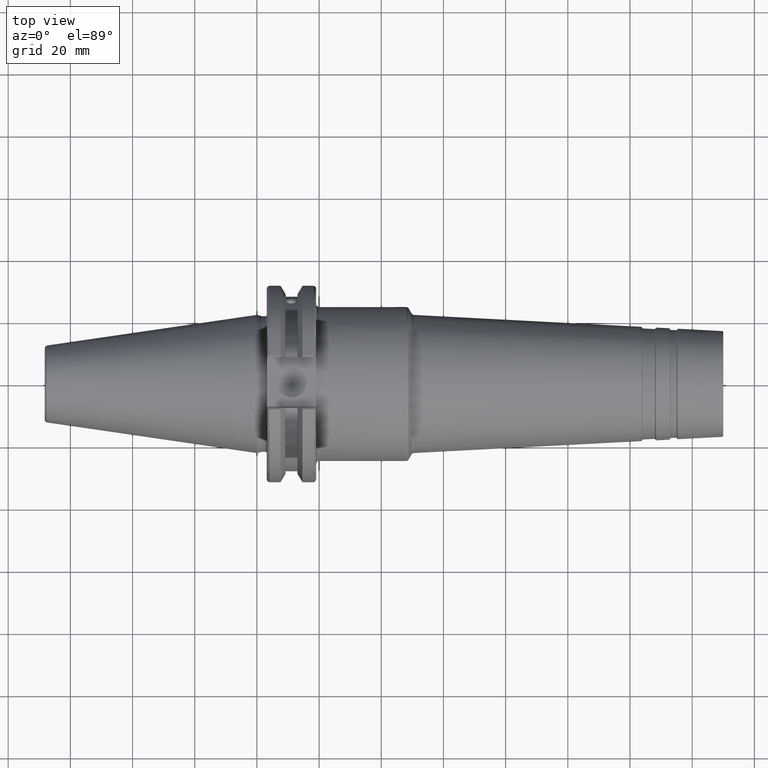
[diagram: clean part render]
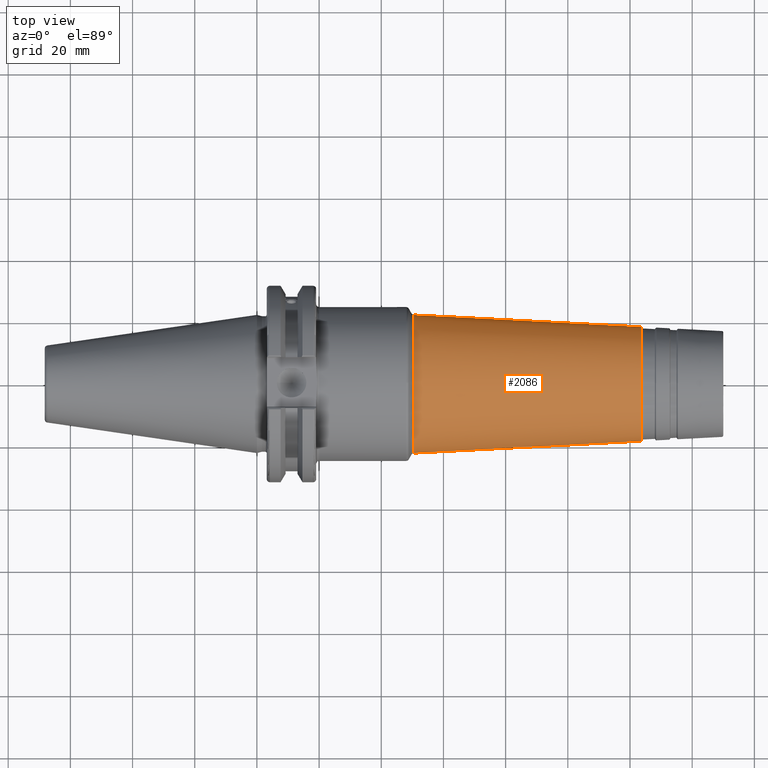
[diagram: same view with one face highlighted and labeled with its STEP entity id]
A machine part, top view. The second image highlights one B-rep face of the part: STEP entity #2086.
In plain terms, the highlighted conical surface has half-angle 3 deg.
Its self-contained STEP definition (entity closure, byte-faithful):
#112=CONICAL_SURFACE('',#2289,20.3081634099065,0.0523598775598296);
#197=FACE_OUTER_BOUND('',#306,.T.);
#306=EDGE_LOOP('',(#1525,#1526,#1527,#1528,#1529,#1530,#1531,#1532));
#415=LINE('',#3462,#514);
#514=VECTOR('',#2704,20.3081634099065);
#673=CIRCLE('',#2286,18.387635362879);
#674=CIRCLE('',#2287,18.387635362879);
#675=CIRCLE('',#2288,18.387635362879);
#676=CIRCLE('',#2290,22.212361822566);
#677=CIRCLE('',#2291,22.212361822566);
#678=CIRCLE('',#2292,22.212361822566);
#843=VERTEX_POINT('',#3453);
#844=VERTEX_POINT('',#3455);
#845=VERTEX_POINT('',#3457);
#846=VERTEX_POINT('',#3461);
#847=VERTEX_POINT('',#3463);
#848=VERTEX_POINT('',#3465);
#1106=EDGE_CURVE('',#843,#844,#673,.T.);
#1107=EDGE_CURVE('',#844,#845,#674,.T.);
#1108=EDGE_CURVE('',#845,#843,#675,.T.);
#1109=EDGE_CURVE('',#844,#846,#415,.T.);
#1110=EDGE_CURVE('',#847,#846,#676,.T.);
#1111=EDGE_CURVE('',#848,#847,#677,.T.);
#1112=EDGE_CURVE('',#846,#848,#678,.T.);
#1525=ORIENTED_EDGE('',*,*,#1108,.F.);
#1526=ORIENTED_EDGE('',*,*,#1107,.F.);
#1527=ORIENTED_EDGE('',*,*,#1109,.T.);
#1528=ORIENTED_EDGE('',*,*,#1110,.F.);
#1529=ORIENTED_EDGE('',*,*,#1111,.F.);
#1530=ORIENTED_EDGE('',*,*,#1112,.F.);
#1531=ORIENTED_EDGE('',*,*,#1109,.F.);
#1532=ORIENTED_EDGE('',*,*,#1106,.F.);
#2086=ADVANCED_FACE('',(#197),#112,.T.);
#2286=AXIS2_PLACEMENT_3D('',#3456,#2696,#2697);
#2287=AXIS2_PLACEMENT_3D('',#3458,#2698,#2699);
#2288=AXIS2_PLACEMENT_3D('',#3459,#2700,#2701);
#2289=AXIS2_PLACEMENT_3D('',#3460,#2702,#2703);
#2290=AXIS2_PLACEMENT_3D('',#3464,#2705,#2706);
#2291=AXIS2_PLACEMENT_3D('',#3466,#2707,#2708);
#2292=AXIS2_PLACEMENT_3D('',#3467,#2709,#2710);
#2696=DIRECTION('center_axis',(1.,0.,0.));
#2697=DIRECTION('ref_axis',(0.,-1.,3.06161699786838E-17));
#2698=DIRECTION('center_axis',(1.,0.,0.));
#2699=DIRECTION('ref_axis',(0.,-1.,3.06161699786838E-17));
#2700=DIRECTION('center_axis',(1.,0.,0.));
#2701=DIRECTION('ref_axis',(0.,-1.,3.06161699786838E-17));
#2702=DIRECTION('center_axis',(-1.,0.,0.));
#2703=DIRECTION('ref_axis',(0.,1.,0.));
#2704=DIRECTION('',(-0.998629534754574,-0.0523359562429436,-6.40930612932368E-18));
#2705=DIRECTION('center_axis',(-1.,0.,0.));
#2706=DIRECTION('ref_axis',(0.,-1.,3.06161699786838E-17));
#2707=DIRECTION('center_axis',(-1.,0.,0.));
#2708=DIRECTION('ref_axis',(0.,-1.,3.06161699786838E-17));
#2709=DIRECTION('center_axis',(-1.,0.,0.));
#2710=DIRECTION('ref_axis',(0.,-1.,3.06161699786838E-17));
#3453=CARTESIAN_POINT('',(123.522339968181,-2.25183587910384E-15,18.387635362879));
#3455=CARTESIAN_POINT('',(123.522339968181,-18.387635362879,-2.25183587910384E-15));
#3456=CARTESIAN_POINT('Origin',(123.522339968181,0.,-2.8147948488798E-15));
#3457=CARTESIAN_POINT('',(123.522339968181,18.387635362879,-1.12591793955192E-15));
#3458=CARTESIAN_POINT('Origin',(123.522339968181,0.,-2.8147948488798E-15));
#3459=CARTESIAN_POINT('Origin',(123.522339968181,0.,-2.8147948488798E-15));
#3460=CARTESIAN_POINT('Origin',(86.8764817902327,0.,0.));
#3461=CARTESIAN_POINT('',(50.5422115977223,-22.212361822566,-2.72022978075083E-15));
#3462=CARTESIAN_POINT('',(86.8764817902327,-20.3081634099065,-2.48703273165034E-15));
#3463=CARTESIAN_POINT('',(50.5422115977223,22.212361822566,-6.80057445187707E-15));
#3464=CARTESIAN_POINT('Origin',(50.5422115977223,0.,-3.40028722593853E-15));
#3465=CARTESIAN_POINT('',(50.5422115977223,-2.72022978075083E-15,22.212361822566));
#3466=CARTESIAN_POINT('Origin',(50.5422115977223,0.,-3.40028722593853E-15));
#3467=CARTESIAN_POINT('Origin',(50.5422115977223,0.,-3.40028722593853E-15));